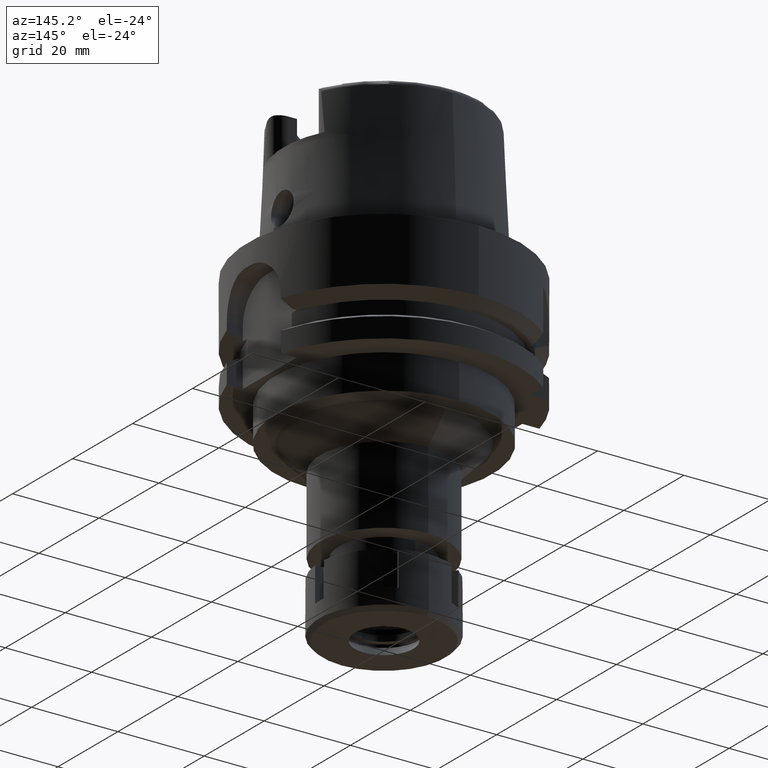
[diagram: clean part render]
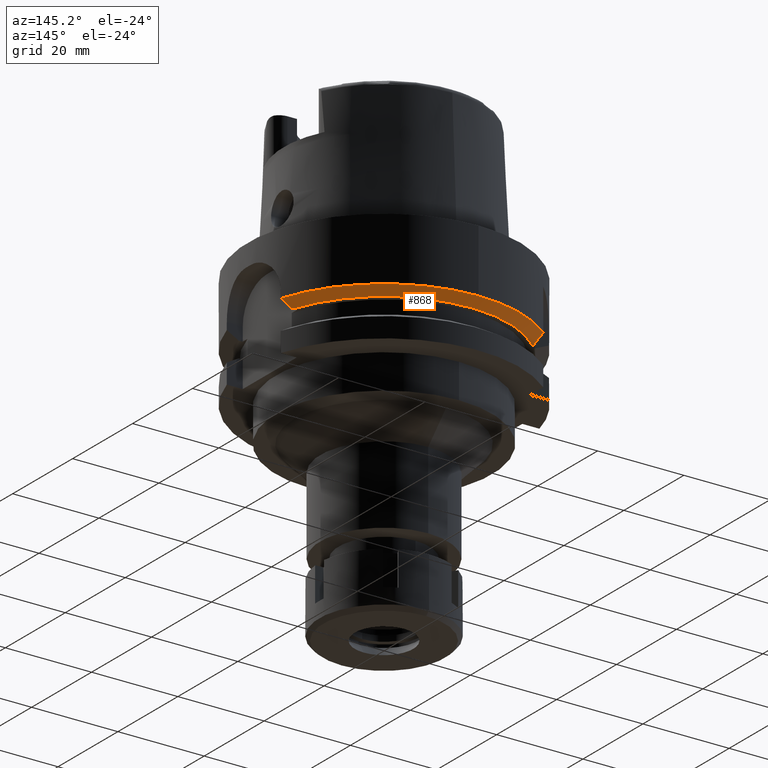
[diagram: same view with one face highlighted and labeled with its STEP entity id]
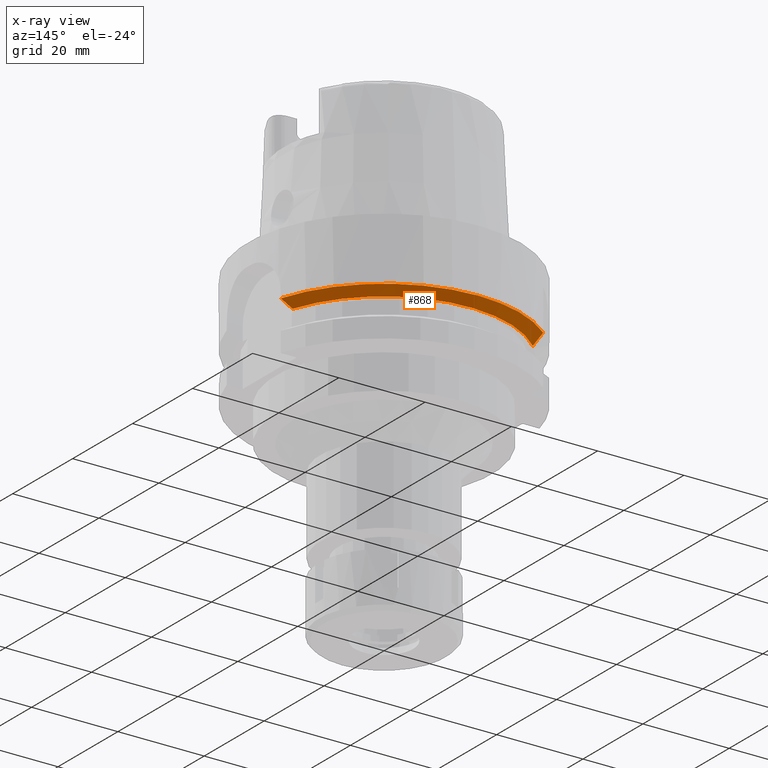
[diagram: x-ray of the same camera — body ghosted, the highlighted face saturated]
A machine part, auxiliary view. The second image highlights one B-rep face of the part: STEP entity #868.
The next image is the same camera in x-ray: the body ghosted, the highlighted face saturated — about 0% of this face is hidden behind the body in this view.
In plain terms, the highlighted conical surface has half-angle 60 deg.
Its self-contained STEP definition (entity closure, byte-faithful):
#35 = CARTESIAN_POINT ( 'NONE',  ( -20.00000000000000000, 23.12606476112103238, -15.16228535714003200 ) ) ;
#139 = CARTESIAN_POINT ( 'NONE',  ( 0.0000000000000000000, 31.50000000000000000, -14.62250092523999889 ) ) ;
#161 = CARTESIAN_POINT ( 'NONE',  ( -20.00000000000000000, 21.96682921029103497, -15.66311477055670132 ) ) ;
#455 = DIRECTION ( 'NONE',  ( 0.0000000000000000000, 0.0000000000000000000, 1.000000000000000000 ) ) ;
#532 = FACE_OUTER_BOUND ( 'NONE', #2620, .T. ) ;
#547 = CARTESIAN_POINT ( 'NONE',  ( 29.24010041030182805, 8.999999701319271850, -15.14635920105199851 ) ) ;
#652 = CIRCLE ( 'NONE', #4395, 28.89759526419000224 ) ;
#729 = CARTESIAN_POINT ( 'NONE',  ( 27.46036362094999816, 8.999999266605000159, -16.12500000000000000 ) ) ;
#868 = ADVANCED_FACE ( 'NONE', ( #532 ), #5543, .T. ) ;
#993 = CARTESIAN_POINT ( 'NONE',  ( 27.46036362094999816, 8.999999266605000159, -16.12500000000000000 ) ) ;
#1259 = VERTEX_POINT ( 'NONE', #2166 ) ;
#1345 = DIRECTION ( 'NONE',  ( 0.0000000000000000000, 1.000000000000000000, 0.0000000000000000000 ) ) ;
#1461 = CARTESIAN_POINT ( 'NONE',  ( -19.99999697632999940, 24.33618953219000147, -14.62251175975000095 ) ) ;
#1557 = AXIS2_PLACEMENT_3D ( 'NONE', #6012, #3624, #5549 ) ;
#1575 = ORIENTED_EDGE ( 'NONE', *, *, #5686, .F. ) ;
#1583 = AXIS2_PLACEMENT_3D ( 'NONE', #2432, #1835, #2337 ) ;
#1668 = VERTEX_POINT ( 'NONE', #139 ) ;
#1835 = DIRECTION ( 'NONE',  ( 0.0000000000000000000, 0.0000000000000000000, 1.000000000000000000 ) ) ;
#1875 = VERTEX_POINT ( 'NONE', #4453 ) ;
#1912 = B_SPLINE_CURVE_WITH_KNOTS ( 'NONE', 3,
 ( #5429, #547, #3912, #993 ),
 .UNSPECIFIED., .F., .F.,
 ( 4, 4 ),
 ( 0.0000000000000000000, 1.000000000000000000 ),
 .UNSPECIFIED. ) ;
#2052 = EDGE_CURVE ( 'NONE', #4767, #1259, #2774, .T. ) ;
#2166 = CARTESIAN_POINT ( 'NONE',  ( -19.99998591006000126, 20.85848287970000214, -16.12500000000000000 ) ) ;
#2337 = DIRECTION ( 'NONE',  ( 0.0000000000000000000, 1.000000000000000000, 0.0000000000000000000 ) ) ;
#2432 = CARTESIAN_POINT ( 'NONE',  ( 0.0000000000000000000, 1.036372656197999898E-14, -15.37375046262000033 ) ) ;
#2449 = DIRECTION ( 'NONE',  ( 0.0000000000000000000, 0.0000000000000000000, 1.000000000000000000 ) ) ;
#2620 = EDGE_LOOP ( 'NONE', ( #1575, #3863, #3496, #3876, #5467 ) ) ;
#2774 = B_SPLINE_CURVE_WITH_KNOTS ( 'NONE', 3,
 ( #4013, #35, #161, #3471 ),
 .UNSPECIFIED., .F., .F.,
 ( 4, 4 ),
 ( 0.0000000000000000000, 1.000000000000000000 ),
 .UNSPECIFIED. ) ;
#3439 = DIRECTION ( 'NONE',  ( 0.0000000000000000000, 1.000000000000000000, 0.0000000000000000000 ) ) ;
#3471 = CARTESIAN_POINT ( 'NONE',  ( -19.99998591006000126, 20.85848287970000214, -16.12500000000000000 ) ) ;
#3496 = ORIENTED_EDGE ( 'NONE', *, *, #6154, .T. ) ;
#3501 = CARTESIAN_POINT ( 'NONE',  ( 0.0000000000000000000, 1.036372656197999898E-14, -14.62250092523999889 ) ) ;
#3558 = VERTEX_POINT ( 'NONE', #729 ) ;
#3581 = EDGE_CURVE ( 'NONE', #1875, #1668, #5701, .T. ) ;
#3624 = DIRECTION ( 'NONE',  ( 0.0000000000000000000, 0.0000000000000000000, 1.000000000000000000 ) ) ;
#3863 = ORIENTED_EDGE ( 'NONE', *, *, #3581, .F. ) ;
#3876 = ORIENTED_EDGE ( 'NONE', *, *, #3991, .T. ) ;
#3912 = CARTESIAN_POINT ( 'NONE',  ( 28.33125883000294110, 8.999998531335915430, -15.64719076461861391 ) ) ;
#3991 = EDGE_CURVE ( 'NONE', #3558, #1259, #652, .T. ) ;
#4013 = CARTESIAN_POINT ( 'NONE',  ( -19.99999697632999940, 24.33618953219000147, -14.62251175975000095 ) ) ;
#4293 = CARTESIAN_POINT ( 'NONE',  ( 0.0000000000000000000, 1.036372656197999898E-14, -16.12500000000000000 ) ) ;
#4395 = AXIS2_PLACEMENT_3D ( 'NONE', #4293, #455, #1345 ) ;
#4453 = CARTESIAN_POINT ( 'NONE',  ( 30.18691774079000112, 8.999999850595001405, -14.62250213027999912 ) ) ;
#4767 = VERTEX_POINT ( 'NONE', #1461 ) ;
#5319 = CIRCLE ( 'NONE', #5921, 31.50000000000000000 ) ;
#5429 = CARTESIAN_POINT ( 'NONE',  ( 30.18691774079000112, 8.999999850595001405, -14.62250213027999912 ) ) ;
#5467 = ORIENTED_EDGE ( 'NONE', *, *, #2052, .F. ) ;
#5543 = CONICAL_SURFACE ( 'NONE', #1583, 30.19879763209999979, 1.047197551196400456 ) ;
#5549 = DIRECTION ( 'NONE',  ( 0.9583148474999051425, 0.2857142857143015191, 0.0000000000000000000 ) ) ;
#5686 = EDGE_CURVE ( 'NONE', #1668, #4767, #5319, .T. ) ;
#5701 = CIRCLE ( 'NONE', #1557, 31.49999999999999645 ) ;
#5921 = AXIS2_PLACEMENT_3D ( 'NONE', #3501, #2449, #3439 ) ;
#6012 = CARTESIAN_POINT ( 'NONE',  ( 0.0000000000000000000, 1.036372656197999898E-14, -14.62250092523999889 ) ) ;
#6154 = EDGE_CURVE ( 'NONE', #1875, #3558, #1912, .T. ) ;